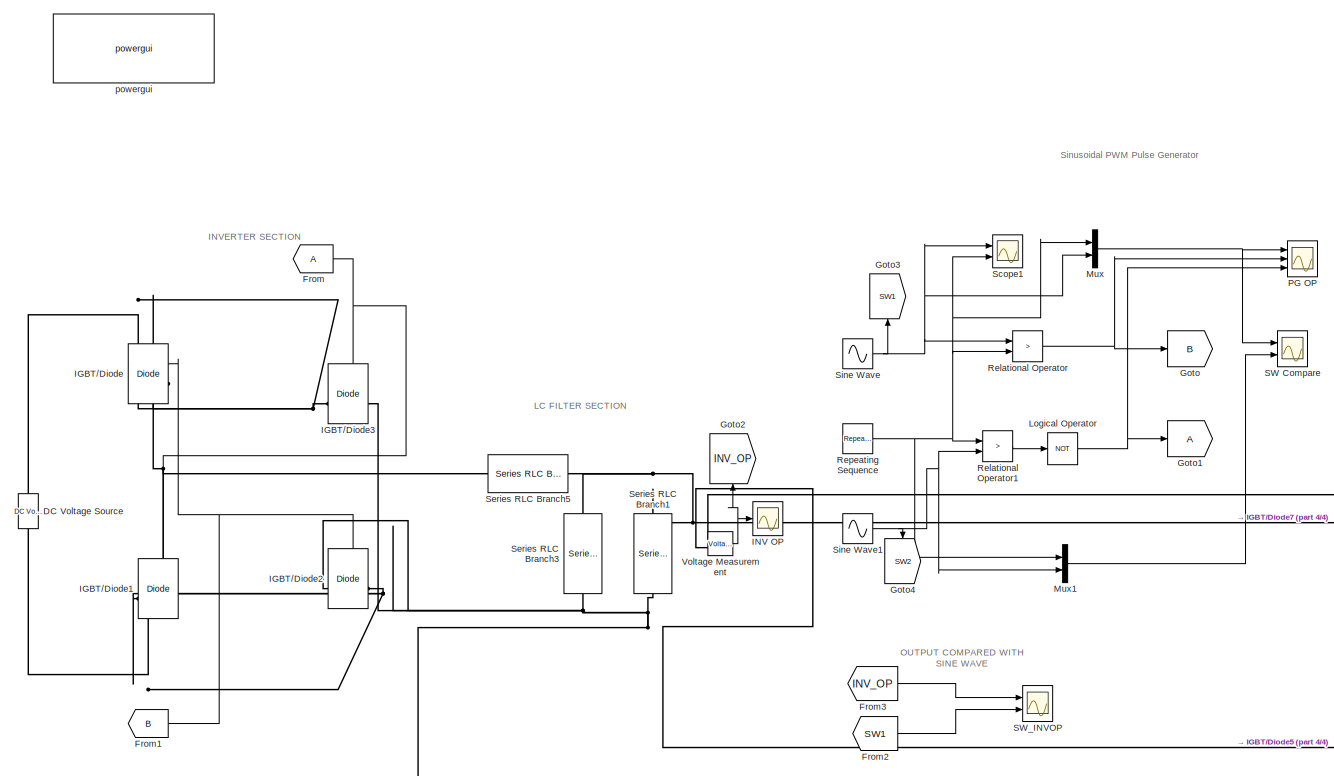
[diagram: root canvas - part 1/4, left side, full height]
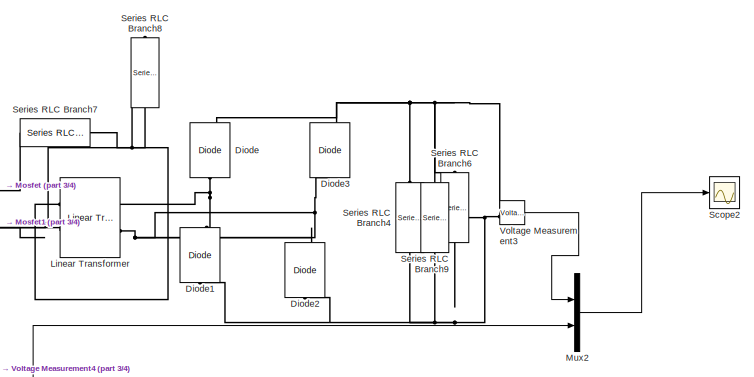
[diagram: root canvas - part 2/4, bottom right region]
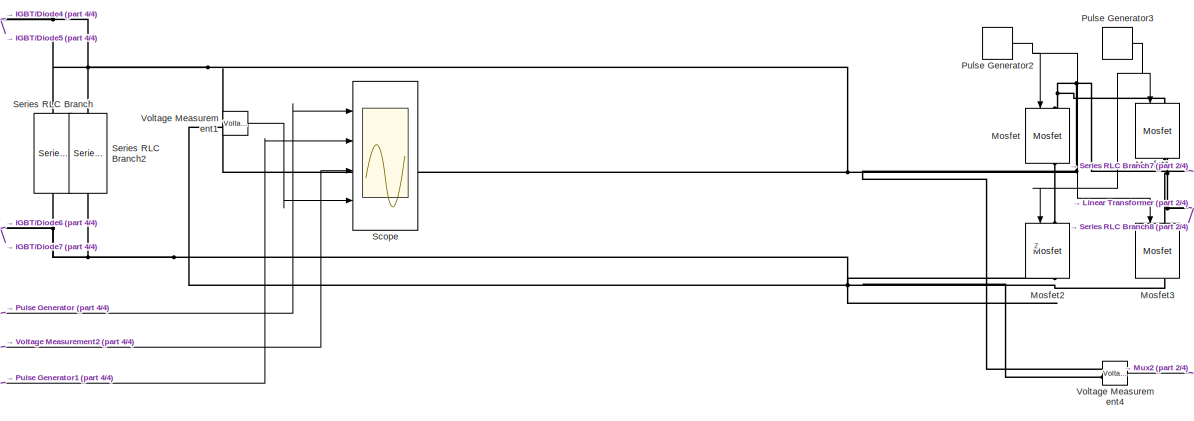
[diagram: root canvas - part 3/4, bottom right region]
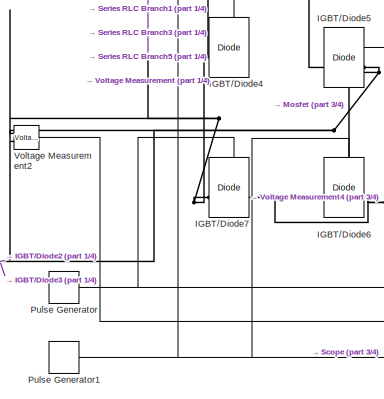
[diagram: root canvas - part 4/4, bottom center region]
MODEL slx_abc5e81f1906
KIND model
BLOCK [Reference] DC Voltage Source  REF=powerlib/Electrical
Sources/DC Voltage Source
  Amplitude = 230
  Measurements = None
  Ports = [0, 0, 0, 0, 0, 1, 1]
  SourceBlock = powerlib/Electrical\nSources/DC Voltage Source
  SourceType = DC Voltage Source
BLOCK [Reference] Diode  REF=powerlib/Power
Electronics/Diode
  Cs = 250e-9
  IC = 0
  Lon = 0
  Measurements = on
  Ports = [0, 1, 0, 0, 0, 1, 1]
  Ron = 0.001
  Rs = 500
  SourceBlock = powerlib/Power\nElectronics/Diode
  SourceType = Diode
  UseSnubber = off
  Vf = 0.8
BLOCK [Reference] Diode1  REF=powerlib/Power
Electronics/Diode
  Cs = 250e-9
  IC = 0
  Lon = 0
  Measurements = on
  Ports = [0, 1, 0, 0, 0, 1, 1]
  Ron = 0.001
  Rs = 500
  SourceBlock = powerlib/Power\nElectronics/Diode
  SourceType = Diode
  UseSnubber = off
  Vf = 0.8
BLOCK [Reference] Diode2  REF=powerlib/Power
Electronics/Diode
  Cs = 250e-9
  IC = 0
  Lon = 0
  Measurements = on
  Ports = [0, 1, 0, 0, 0, 1, 1]
  Ron = 0.001
  Rs = 500
  SourceBlock = powerlib/Power\nElectronics/Diode
  SourceType = Diode
  UseSnubber = off
  Vf = 0.8
BLOCK [Reference] Diode3  REF=powerlib/Power
Electronics/Diode
  Cs = 250e-9
  IC = 0
  Lon = 0
  Measurements = on
  Ports = [0, 1, 0, 0, 0, 1, 1]
  Ron = 0.001
  Rs = 500
  SourceBlock = powerlib/Power\nElectronics/Diode
  SourceType = Diode
  UseSnubber = off
  Vf = 0.8
BLOCK [From] From
BLOCK [From] From1
  GotoTag = B
BLOCK [From] From2
  GotoTag = SW1
BLOCK [From] From3
  GotoTag = INV_OP
BLOCK [Goto] Goto
  GotoTag = B
BLOCK [Goto] Goto1
BLOCK [Goto] Goto2
  GotoTag = INV_OP
BLOCK [Goto] Goto3
  GotoTag = SW1
BLOCK [Goto] Goto4
  GotoTag = SW2
BLOCK [Reference] IGBT//Diode  REF=powerlib/Power
Electronics/IGBT//Diode
  Cs = inf
  Measurements = on
  Ports = [1, 1, 0, 0, 0, 1, 1]
  Ron = 1e-3
  Rs = 1e5
  SourceBlock = powerlib/Power\nElectronics/IGBT//Diode
  SourceType = IGBT/Diode
BLOCK [Reference] IGBT//Diode1  REF=powerlib/Power
Electronics/IGBT//Diode
  Cs = inf
  Measurements = on
  Ports = [1, 1, 0, 0, 0, 1, 1]
  Ron = 1e-3
  Rs = 1e5
  SourceBlock = powerlib/Power\nElectronics/IGBT//Diode
  SourceType = IGBT/Diode
BLOCK [Reference] IGBT//Diode2  REF=powerlib/Power
Electronics/IGBT//Diode
  Cs = inf
  Measurements = on
  Ports = [1, 1, 0, 0, 0, 1, 1]
  Ron = 1e-3
  Rs = 1e5
  SourceBlock = powerlib/Power\nElectronics/IGBT//Diode
  SourceType = IGBT/Diode
BLOCK [Reference] IGBT//Diode3  REF=powerlib/Power
Electronics/IGBT//Diode
  Cs = inf
  Measurements = on
  Ports = [1, 1, 0, 0, 0, 1, 1]
  Ron = 1e-3
  Rs = 1e5
  SourceBlock = powerlib/Power\nElectronics/IGBT//Diode
  SourceType = IGBT/Diode
BLOCK [Reference] IGBT//Diode4  REF=powerlib/Power
Electronics/IGBT//Diode
  Cs = inf
  Measurements = on
  Ports = [1, 1, 0, 0, 0, 1, 1]
  Ron = 1e-3
  Rs = 1e5
  SourceBlock = powerlib/Power\nElectronics/IGBT//Diode
  SourceType = IGBT/Diode
BLOCK [Reference] IGBT//Diode5  REF=powerlib/Power
Electronics/IGBT//Diode
  Cs = inf
  Measurements = on
  Ports = [1, 1, 0, 0, 0, 1, 1]
  Ron = 1e-3
  Rs = 1e5
  SourceBlock = powerlib/Power\nElectronics/IGBT//Diode
  SourceType = IGBT/Diode
BLOCK [Reference] IGBT//Diode6  REF=powerlib/Power
Electronics/IGBT//Diode
  Cs = inf
  Measurements = on
  Ports = [1, 1, 0, 0, 0, 1, 1]
  Ron = 1e-3
  Rs = 1e5
  SourceBlock = powerlib/Power\nElectronics/IGBT//Diode
  SourceType = IGBT/Diode
BLOCK [Reference] IGBT//Diode7  REF=powerlib/Power
Electronics/IGBT//Diode
  Cs = inf
  Measurements = on
  Ports = [1, 1, 0, 0, 0, 1, 1]
  Ron = 1e-3
  Rs = 1e5
  SourceBlock = powerlib/Power\nElectronics/IGBT//Diode
  SourceType = IGBT/Diode
BLOCK [Scope] INV OP
  Floating = off
  LimitDataPoints = off
  NumInputPorts = 1
  Ports = [1]
  SaveName = ScopeData2
  ShowLegends = off
  TimeRange = 1
  YMax = 300
  YMin = -300
  ZoomMode = xonly
BLOCK [Reference] Linear Transformer  REF=powerlib/Elements/Linear Transformer
  DataType = on
  LConnTagsString = a|b
  Measurements = None
  NominalPower = [8e3 20000 ]
  Ports = [0, 0, 0, 0, 0, 2, 2]
  RConnTagsString = A|B
  RmLm = [1000 21.518e-6]
  SourceBlock = powerlib/Elements/Linear Transformer
  SourceType = Linear Transformer
  ThreeWindings = off
  UNITS = SI
  winding1 = [100 0.00025 0]
  winding2 = [486 0.0004 0]
  winding3 = [3.15e+05 24806 7.8961]
BLOCK [Logic] Logical Operator
  AllPortsSameDT = off
  Operator = NOT
  OutDataTypeStr = boolean
  Ports = [1, 1]
BLOCK [Reference] Mosfet  REF=powerlib/Power
Electronics/Mosfet
  Cs = inf
  IC = 0
  Lon = 0
  Measurements = on
  Ports = [1, 1, 0, 0, 0, 1, 1]
  Rd = 2e-3
  Ron = 2e-3
  Rs = 1e5
  SourceBlock = powerlib/Power\nElectronics/Mosfet
  SourceType = Mosfet
  Vfd = 1
BLOCK [Reference] Mosfet1  REF=powerlib/Power
Electronics/Mosfet
  Cs = inf
  IC = 0
  Lon = 0
  Measurements = on
  Ports = [1, 1, 0, 0, 0, 1, 1]
  Rd = 2e-3
  Ron = 2e-3
  Rs = 1e5
  SourceBlock = powerlib/Power\nElectronics/Mosfet
  SourceType = Mosfet
  Vfd = 1
BLOCK [Reference] Mosfet2  REF=powerlib/Power
Electronics/Mosfet
  Cs = inf
  IC = 0
  Lon = 0
  Measurements = on
  Ports = [1, 1, 0, 0, 0, 1, 1]
  Rd = 2e-3
  Ron = 2e-3
  Rs = 1e5
  SourceBlock = powerlib/Power\nElectronics/Mosfet
  SourceType = Mosfet
  Vfd = 1
BLOCK [Reference] Mosfet3  REF=powerlib/Power
Electronics/Mosfet
  Cs = inf
  IC = 0
  Lon = 0
  Measurements = on
  Ports = [1, 1, 0, 0, 0, 1, 1]
  Rd = 2e-3
  Ron = 2e-3
  Rs = 1e5
  SourceBlock = powerlib/Power\nElectronics/Mosfet
  SourceType = Mosfet
  Vfd = 1
BLOCK [Mux] Mux
  DisplayOption = bar
  Inputs = 2
  Ports = [2, 1]
BLOCK [Mux] Mux1
  DisplayOption = bar
  Inputs = 2
  Ports = [2, 1]
BLOCK [Mux] Mux2
  DisplayOption = bar
  Inputs = 2
  Ports = [2, 1]
BLOCK [Scope] PG OP
  Floating = off
  LimitDataPoints = off
  NumInputPorts = 3
  Ports = [3]
  ShowLegends = off
  YMax = 10~5~5
  YMin = -10~-5~-5
  ZoomMode = xonly
BLOCK [DiscretePulseGenerator] Pulse Generator
  Amplitude = 10
  Period = 20e-3
  PhaseDelay = 2
  Ports = [0, 1]
  PulseType = Time based
  PulseWidth = 5
BLOCK [DiscretePulseGenerator] Pulse Generator1
  Amplitude = 10
  Period = 20e-3
  PhaseDelay = 1
  Ports = [0, 1]
  PulseType = Time based
  PulseWidth = 5
BLOCK [DiscretePulseGenerator] Pulse Generator2
  Amplitude = 5
  Period = 50e-6
  Ports = [0, 1]
  PulseType = Time based
  PulseWidth = 50
BLOCK [DiscretePulseGenerator] Pulse Generator3
  Amplitude = 5
  Period = 50e-6
  PhaseDelay = 25e-6
  Ports = [0, 1]
  PulseType = Time based
  PulseWidth = 50
BLOCK [RelationalOperator] Relational Operator
  InputSameDT = off
  Operator = >
  OutDataTypeStr = boolean
  Ports = [2, 1]
BLOCK [RelationalOperator] Relational Operator1
  InputSameDT = off
  Operator = >
  OutDataTypeStr = boolean
  Ports = [2, 1]
BLOCK [Reference] Repeating Sequence  REF=simulink/Sources/Repeating
Sequence
  Ports = [0, 1]
  SourceBlock = simulink/Sources/Repeating\nSequence
  SourceType = Repeating table
  rep_seq_t = [0 0.5 1]*(1/1000)
  rep_seq_y = [0 1 0]
BLOCK [Scope] SW Compare
  Floating = off
  LimitDataPoints = off
  NumInputPorts = 2
  Ports = [2]
  SaveName = ScopeData3
  ShowLegends = off
  YMax = 10~5
  YMin = -10~-5
  ZoomMode = xonly
BLOCK [Scope] SW_INVOP
  Floating = off
  LimitDataPoints = off
  NumInputPorts = 2
  Ports = [2]
  SaveName = ScopeData4
  ShowLegends = off
  YMax = 250~0.8
  YMin = -250~-0.8
  ZoomMode = xonly
BLOCK [Scope] Scope
  Floating = off
  NumInputPorts = 4
  Ports = [4]
  SaveName = ScopeData5
  ShowLegends = off
  TimeRange = 1.053745218223906
  YMax = 10~10~100~150
  YMin = 0~0~-100~-0
  ZoomMode = xonly
BLOCK [Scope] Scope1
  Floating = off
  LimitDataPoints = off
  NumInputPorts = 2
  Ports = [2]
  SaveName = ScopeData1
  ShowLegends = off
  YMax = 5~5
  YMin = -5~-5
  ZoomMode = xonly
BLOCK [Scope] Scope2
  DataFormat = StructureWithTime
  Decimation = 20
  Floating = off
  LimitDataPoints = off
  NumInputPorts = 1
  Ports = [1]
  SampleTime = 0
  SaveName = ScopeData6
  ShowLegends = off
  YMax = 230
  YMin = 165
  ZoomMode = xonly
BLOCK [Reference] Series RLC Branch  REF=powerlib/Elements/Series RLC Branch
  BranchType = C
  Capacitance = 435e-4
  Inductance = 1e-4
  InitialCurrent = 0
  InitialVoltage = 0
  LConnTagsString = __new0
  Measurements = None
  Ports = [0, 0, 0, 0, 0, 1, 1]
  RConnTagsString = __new0
  Resistance = 10
  SetiL0 = off
  Setx0 = off
  SourceBlock = powerlib/Elements/Series RLC Branch
  SourceType = Series RLC Branch
BLOCK [Reference] Series RLC Branch1  REF=powerlib/Elements/Series RLC Branch
  BranchType = R
  Capacitance = 500e-3
  Inductance = 40e-3
  InitialCurrent = 0
  InitialVoltage = 0
  LConnTagsString = __new0
  Measurements = None
  Ports = [0, 0, 0, 0, 0, 1, 1]
  RConnTagsString = __new0
  Resistance = 50
  SetiL0 = off
  Setx0 = off
  SourceBlock = powerlib/Elements/Series RLC Branch
  SourceType = Series RLC Branch
BLOCK [Reference] Series RLC Branch2  REF=powerlib/Elements/Series RLC Branch
  BranchType = R
  Capacitance = 1e-1
  Inductance = 1e-4
  InitialCurrent = 0
  InitialVoltage = 0
  LConnTagsString = __new0
  Measurements = None
  Ports = [0, 0, 0, 0, 0, 1, 1]
  RConnTagsString = __new0
  Resistance = 130
  SetiL0 = off
  Setx0 = off
  SourceBlock = powerlib/Elements/Series RLC Branch
  SourceType = Series RLC Branch
BLOCK [Reference] Series RLC Branch3  REF=powerlib/Elements/Series RLC Branch
  BranchType = C
  Capacitance = 1.9e-4
  Inductance = 40e-3
  InitialCurrent = 0
  InitialVoltage = 0
  LConnTagsString = __new0
  Measurements = None
  Ports = [0, 0, 0, 0, 0, 1, 1]
  RConnTagsString = __new0
  Resistance = 1
  SetiL0 = off
  Setx0 = off
  SourceBlock = powerlib/Elements/Series RLC Branch
  SourceType = Series RLC Branch
BLOCK [Reference] Series RLC Branch4  REF=powerlib/Elements/Series RLC Branch
  BranchType = C
  Capacitance = 6.2e-6
  Inductance = 1e-3
  InitialCurrent = 0
  InitialVoltage = 0
  LConnTagsString = __new0
  Measurements = Branch voltage
  Ports = [0, 0, 0, 0, 0, 1, 1]
  RConnTagsString = __new0
  Resistance = 1
  SetiL0 = off
  Setx0 = off
  SourceBlock = powerlib/Elements/Series RLC Branch
  SourceType = Series RLC Branch
BLOCK [Reference] Series RLC Branch5  REF=powerlib/Elements/Series RLC Branch
  BranchType = L
  Capacitance = 500e-3
  Inductance = 500e-4
  InitialCurrent = 0
  InitialVoltage = 0
  LConnTagsString = __new0
  Measurements = None
  Ports = [0, 0, 0, 0, 0, 1, 1]
  RConnTagsString = __new0
  Resistance = 1
  SetiL0 = off
  Setx0 = off
  SourceBlock = powerlib/Elements/Series RLC Branch
  SourceType = Series RLC Branch
BLOCK [Reference] Series RLC Branch6  REF=powerlib/Elements/Series RLC Branch
  BranchType = R
  Capacitance = 10e-6
  Inductance = 1e-3
  InitialCurrent = 0
  InitialVoltage = 0
  LConnTagsString = __new0
  Measurements = Branch voltage
  Ports = [0, 0, 0, 0, 0, 1, 1]
  RConnTagsString = __new0
  Resistance = 85.47
  SetiL0 = off
  Setx0 = off
  SourceBlock = powerlib/Elements/Series RLC Branch
  SourceType = Series RLC Branch
BLOCK [Reference] Series RLC Branch7  REF=powerlib/Elements/Series RLC Branch
  BranchType = LC
  Capacitance = 0.52e-6
  Inductance = 4.06e-6
  InitialCurrent = 0
  InitialVoltage = 0
  LConnTagsString = __new0
  Measurements = Branch voltage
  Ports = [0, 0, 0, 0, 0, 1, 1]
  RConnTagsString = __new0
  Resistance = 100
  SetiL0 = off
  Setx0 = off
  SourceBlock = powerlib/Elements/Series RLC Branch
  SourceType = Series RLC Branch
BLOCK [Reference] Series RLC Branch8  REF=powerlib/Elements/Series RLC Branch
  BranchType = L
  Capacitance = 10e-6
  Inductance = 21.518e-6
  InitialCurrent = 0
  InitialVoltage = 0
  LConnTagsString = __new0
  Measurements = Branch voltage
  Ports = [0, 0, 0, 0, 0, 1, 1]
  RConnTagsString = __new0
  Resistance = 100
  SetiL0 = off
  Setx0 = off
  SourceBlock = powerlib/Elements/Series RLC Branch
  SourceType = Series RLC Branch
BLOCK [Reference] Series RLC Branch9  REF=powerlib/Elements/Series RLC Branch
  BranchType = C
  Capacitance = 6.2e-5
  Inductance = 1e-3
  InitialCurrent = 0
  InitialVoltage = 0
  LConnTagsString = __new0
  Measurements = Branch voltage
  Ports = [0, 0, 0, 0, 0, 1, 1]
  RConnTagsString = __new0
  Resistance = 1
  SetiL0 = off
  Setx0 = off
  SourceBlock = powerlib/Elements/Series RLC Branch
  SourceType = Series RLC Branch
BLOCK [Sin] Sine Wave
  Amplitude = 0.8
  Frequency = 2*pi*50
  Ports = [0, 1]
  SampleTime = 0
BLOCK [Sin] Sine Wave1
  Amplitude = 0.8
  Frequency = 2*pi*50
  Phase = pi
  Ports = [0, 1]
  SampleTime = 0
BLOCK [Reference] Voltage Measurement  REF=powerlib/Measurements/Voltage Measurement
  OutputType = Complex
  PSBequivalent = 0
  PhasorSimulation = off
  Ports = [0, 1, 0, 0, 0, 2]
  SourceBlock = powerlib/Measurements/Voltage Measurement
  SourceType = Voltage Measurement
  UserDataPersistent = on
BLOCK [Reference] Voltage Measurement1  REF=powerlib/Measurements/Voltage Measurement
  OutputType = Complex
  PSBequivalent = 0
  PhasorSimulation = off
  Ports = [0, 1, 0, 0, 0, 2]
  SourceBlock = powerlib/Measurements/Voltage Measurement
  SourceType = Voltage Measurement
  UserDataPersistent = on
BLOCK [Reference] Voltage Measurement2  REF=powerlib/Measurements/Voltage Measurement
  OutputType = Complex
  PSBequivalent = 0
  PhasorSimulation = off
  Ports = [0, 1, 0, 0, 0, 2]
  SourceBlock = powerlib/Measurements/Voltage Measurement
  SourceType = Voltage Measurement
  UserDataPersistent = on
BLOCK [Reference] Voltage Measurement3  REF=powerlib/Measurements/Voltage Measurement
  OutputType = Complex
  PSBequivalent = 0
  PhasorSimulation = off
  Ports = [0, 1, 0, 0, 0, 2]
  SourceBlock = powerlib/Measurements/Voltage Measurement
  SourceType = Voltage Measurement
BLOCK [Reference] Voltage Measurement4  REF=powerlib/Measurements/Voltage Measurement
  OutputType = Complex
  PSBequivalent = 0
  PhasorSimulation = off
  Ports = [0, 1, 0, 0, 0, 2]
  SourceBlock = powerlib/Measurements/Voltage Measurement
  SourceType = Voltage Measurement
BLOCK [Reference] powergui  REF=powerlib/powergui
  DisableRonSwitches = off
  DisableSnubberDevices = off
  DisableVfSwitches = off
  DisplayEquations = off
  DisplayStyle = 1
  EnableUseOfTLC = off
  ErrMax = 1e-4
  Frange = [0:2:500]
  FreqAxis = off
  FunctionMessages = off
  HookPort = off
  Interpol = off
  Iterations = 50
  MaxFrequency = 1000
  Pbase = 100e6
  Ports = []
  Priority = 1
  ResistiveCurrentMeasurement = off
  RestoreLinks = warning
  RmsSteady = 1
  SPID = off
  SampleTime = 1e-8
  ShowGrid = off
  SolverType = Tustin
  SourceBlock = powerlib/powergui
  SourceType = PSB option menu block
  StartTime = 0.0
  SwTol = 0
  Ts = 100
  UnitsV = kV
  UnitsW = MW
  UserDataPersistent = on
  Xlog = on
  Ylog = off
  ZoomFFT = off
  cycles = 1
  display = off
  echomessages = off
  frequency = 60
  frequencyindice = 0
  frequencyindicesteady = 1
  fundamental = 60
  methode = off
  save = off
  structure = 0
  variable = ZData
  x0status = blocks
ANNOTATION (root): OUTPUT COMPARED WITH SINE WAVE
ANNOTATION (root): INVERTER SECTION
ANNOTATION (root): LC FILTER SECTION
ANNOTATION (root): Sinusoidal PWM Pulse Generator
ANNOTATION (root): z
NET From1:1 -> IGBT//Diode2:1, IGBT//Diode:1
LINE From2:1 -> SW_INVOP:2
LINE From3:1 -> SW_INVOP:1
NET From:1 -> IGBT//Diode1:1, IGBT//Diode3:1
NET Logical Operator:1 -> Goto1:1, PG OP:3
LINE Mux1:1 -> SW Compare:2
LINE Mux2:1 -> Scope2:1
NET Mux:1 -> PG OP:1, SW Compare:1
NET Pulse Generator1:1 -> IGBT//Diode4:1, IGBT//Diode6:1, Scope:2
NET Pulse Generator2:1 -> Mosfet3:1, Mosfet:1
NET Pulse Generator3:1 -> Mosfet1:1, Mosfet2:1
NET Pulse Generator:1 -> IGBT//Diode5:1, IGBT//Diode7:1, Scope:1
LINE Relational Operator1:1 -> Logical Operator:1
NET Relational Operator:1 -> Goto:1, PG OP:2
NET Repeating Sequence:1 -> Mux1:1, Mux:1, Relational Operator1:1, Relational Operator:2, Scope1:2
NET Sine Wave1:1 -> Goto4:1, Mux1:2, Relational Operator1:2
NET Sine Wave:1 -> Goto3:1, Mux:2, Relational Operator:1, Scope1:1
LINE Voltage Measurement1:1 -> Scope:4
LINE Voltage Measurement2:1 -> Scope:3
LINE Voltage Measurement3:1 -> Mux2:1
LINE Voltage Measurement4:1 -> Mux2:2
NET Voltage Measurement:1 -> Goto2:1, INV OP:1
PNET net1: DC Voltage Source:LConn1 -- IGBT//Diode1:RConn1 -- IGBT//Diode2:RConn1
PNET net2: DC Voltage Source:RConn1 -- IGBT//Diode3:LConn1 -- IGBT//Diode:LConn1
PNET net3: Diode1:LConn1 -- Diode2:LConn1 -- Series RLC Branch4:RConn1 -- Series RLC Branch6:RConn1 -- Series RLC Branch9:RConn1 -- Voltage Measurement3:LConn2
PNET net4: Diode1:RConn1 -- Diode:LConn1 -- Linear Transformer:RConn1
PNET net5: Diode2:RConn1 -- Diode3:LConn1 -- Linear Transformer:RConn2
PNET net6: Diode3:RConn1 -- Diode:RConn1 -- Series RLC Branch4:LConn1 -- Series RLC Branch6:LConn1 -- Series RLC Branch9:LConn1 -- Voltage Measurement3:LConn1
PNET net7: IGBT//Diode1:LConn1 -- IGBT//Diode:RConn1 -- Series RLC Branch5:LConn1
PNET net8: IGBT//Diode2:LConn1 -- IGBT//Diode3:RConn1 -- IGBT//Diode5:RConn1 -- IGBT//Diode6:LConn1 -- Series RLC Branch1:LConn1 -- Series RLC Branch3:RConn1 -- Voltage Measurement2:LConn2 -- Voltage Measurement:LConn2
PNET net9: IGBT//Diode4:LConn1 -- IGBT//Diode5:LConn1 -- Mosfet1:LConn1 -- Mosfet:LConn1 -- Series RLC Branch2:LConn1 -- Series RLC Branch7:RConn1 -- Series RLC Branch:LConn1 -- Voltage Measurement1:LConn1 -- Voltage Measurement4:LConn1
PNET net10: IGBT//Diode4:RConn1 -- IGBT//Diode7:LConn1 -- Series RLC Branch1:RConn1 -- Series RLC Branch3:LConn1 -- Series RLC Branch5:RConn1 -- Voltage Measurement2:LConn1 -- Voltage Measurement:LConn1
PNET net11: IGBT//Diode6:RConn1 -- IGBT//Diode7:RConn1 -- Mosfet2:RConn1 -- Mosfet3:RConn1 -- Series RLC Branch2:RConn1 -- Series RLC Branch:RConn1 -- Voltage Measurement1:LConn2 -- Voltage Measurement4:LConn2
PNET net12: Linear Transformer:LConn1 -- Series RLC Branch7:LConn1 -- Series RLC Branch8:LConn1
PNET net13: Linear Transformer:LConn2 -- Mosfet1:RConn1 -- Mosfet3:LConn1 -- Series RLC Branch8:RConn1
PLINE Mosfet2:LConn1 -- Mosfet:RConn1
note: NET lines group one-source signal fan-out (src -> all destinations, sorted); 1:1 wires keep LINE; PNET lines group multi-terminal physical nets as a canonical sorted terminal list (undirected conserving connections); 2-terminal nets keep the pairwise PLINE form
